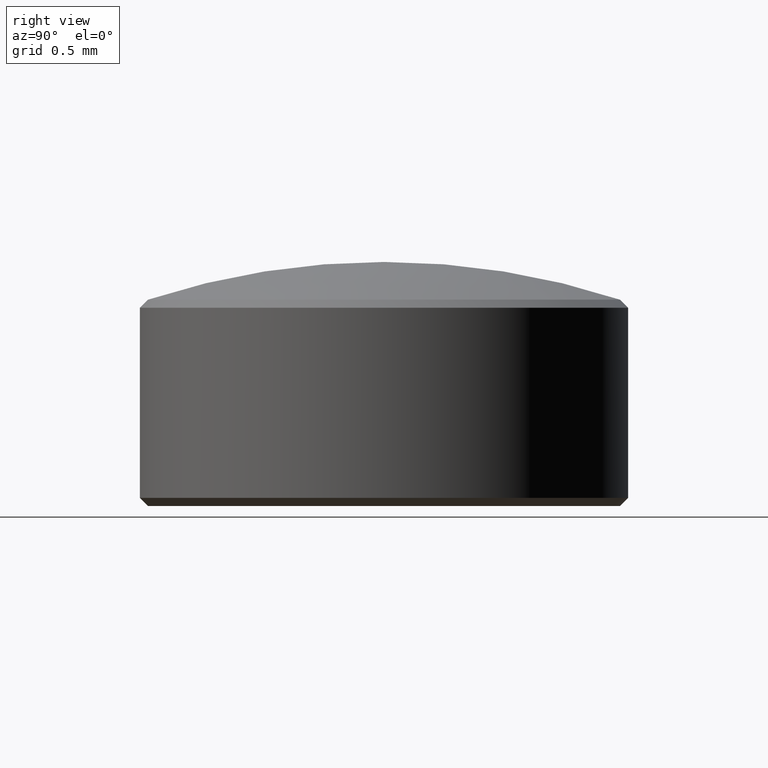
[diagram: clean part render]
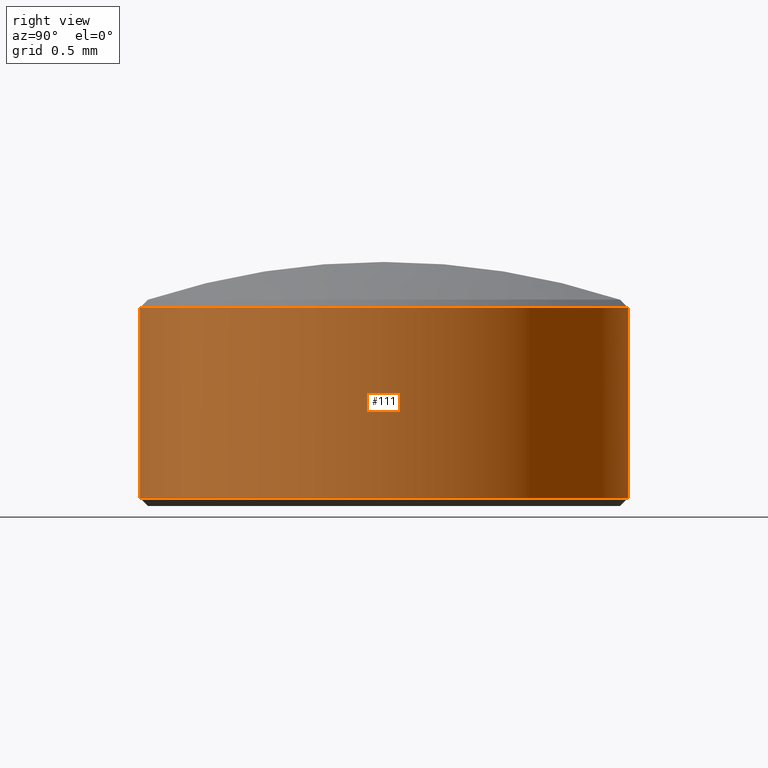
[diagram: same view with one face highlighted and labeled with its STEP entity id]
A machine part, right view. The second image highlights one B-rep face of the part: STEP entity #111.
In plain terms, the highlighted cylindrical surface (partial cylindrical patch) has radius 1.5 mm, axis along (-0, 0, -1).
Its self-contained STEP definition (entity closure, byte-faithful):
#6 = CIRCLE ( 'NONE', #25, 1.499999999999999778 ) ;
#9 = VERTEX_POINT ( 'NONE', #236 ) ;
#10 = EDGE_CURVE ( 'NONE', #215, #9, #269, .T. ) ;
#22 = LINE ( 'NONE', #88, #208 ) ;
#25 = AXIS2_PLACEMENT_3D ( 'NONE', #222, #121, #185 ) ;
#33 = VECTOR ( 'NONE', #66, 1000.000000000000000 ) ;
#35 = EDGE_CURVE ( 'NONE', #227, #235, #22, .T. ) ;
#42 = ORIENTED_EDGE ( 'NONE', *, *, #230, .T. ) ;
#45 = DIRECTION ( 'NONE',  ( -0.0000000000000000000, 1.224646799147353207E-16, -1.000000000000000000 ) ) ;
#49 = CIRCLE ( 'NONE', #108, 1.500000000000000000 ) ;
#66 = DIRECTION ( 'NONE',  ( -0.0000000000000000000, 1.224646799147353207E-16, -1.000000000000000000 ) ) ;
#70 = CARTESIAN_POINT ( 'NONE',  ( 0.8048939134660000327, -0.1881319013420442166, 1.941295987042919613 ) ) ;
#88 = CARTESIAN_POINT ( 'NONE',  ( 0.8048939134660000327, -0.1881319013420442166, 1.891295987042918680 ) ) ;
#95 = DIRECTION ( 'NONE',  ( -0.0000000000000000000, 1.224646799147353207E-16, -1.000000000000000000 ) ) ;
#108 = AXIS2_PLACEMENT_3D ( 'NONE', #124, #294, #163 ) ;
#111 = ADVANCED_FACE ( 'NONE', ( #170 ), #243, .T. ) ;
#116 = EDGE_LOOP ( 'NONE', ( #42, #134, #175, #255 ) ) ;
#121 = DIRECTION ( 'NONE',  ( -0.0000000000000000000, 1.224646799147353207E-16, -1.000000000000000000 ) ) ;
#124 = CARTESIAN_POINT ( 'NONE',  ( 0.8048939134659998107, 1.311868098657955839, 1.941295987042919835 ) ) ;
#134 = ORIENTED_EDGE ( 'NONE', *, *, #35, .T. ) ;
#139 = AXIS2_PLACEMENT_3D ( 'NONE', #141, #95, #266 ) ;
#141 = CARTESIAN_POINT ( 'NONE',  ( 0.8048939134659998107, 1.311868098657955839, 1.891295987042918902 ) ) ;
#154 = EDGE_CURVE ( 'NONE', #235, #9, #49, .T. ) ;
#163 = DIRECTION ( 'NONE',  ( 0.0000000000000000000, 1.000000000000000000, 1.445602896647339163E-16 ) ) ;
#170 = FACE_OUTER_BOUND ( 'NONE', #116, .T. ) ;
#175 = ORIENTED_EDGE ( 'NONE', *, *, #154, .T. ) ;
#185 = DIRECTION ( 'NONE',  ( 0.0000000000000000000, 1.000000000000000000, 0.0000000000000000000 ) ) ;
#197 = CARTESIAN_POINT ( 'NONE',  ( 0.8048939134659998107, 2.811868098657956061, 1.891295987042919124 ) ) ;
#202 = CARTESIAN_POINT ( 'NONE',  ( 0.8048939134659998107, 2.811868098657955617, 3.109492859778959950 ) ) ;
#208 = VECTOR ( 'NONE', #45, 1000.000000000000000 ) ;
#215 = VERTEX_POINT ( 'NONE', #202 ) ;
#222 = CARTESIAN_POINT ( 'NONE',  ( 0.8048939134659998107, 1.311868098657955617, 3.109492859778959950 ) ) ;
#227 = VERTEX_POINT ( 'NONE', #242 ) ;
#230 = EDGE_CURVE ( 'NONE', #215, #227, #6, .T. ) ;
#235 = VERTEX_POINT ( 'NONE', #70 ) ;
#236 = CARTESIAN_POINT ( 'NONE',  ( 0.8048939134659998107, 2.811868098657956061, 1.941295987042920057 ) ) ;
#242 = CARTESIAN_POINT ( 'NONE',  ( 0.8048939134660000327, -0.1881319013420444108, 3.109492859778959950 ) ) ;
#243 = CYLINDRICAL_SURFACE ( 'NONE', #139, 1.500000000000000000 ) ;
#255 = ORIENTED_EDGE ( 'NONE', *, *, #10, .F. ) ;
#266 = DIRECTION ( 'NONE',  ( 0.0000000000000000000, 1.000000000000000000, 1.445602896647339163E-16 ) ) ;
#269 = LINE ( 'NONE', #197, #33 ) ;
#294 = DIRECTION ( 'NONE',  ( 0.0000000000000000000, -1.224646799147353207E-16, 1.000000000000000000 ) ) ;